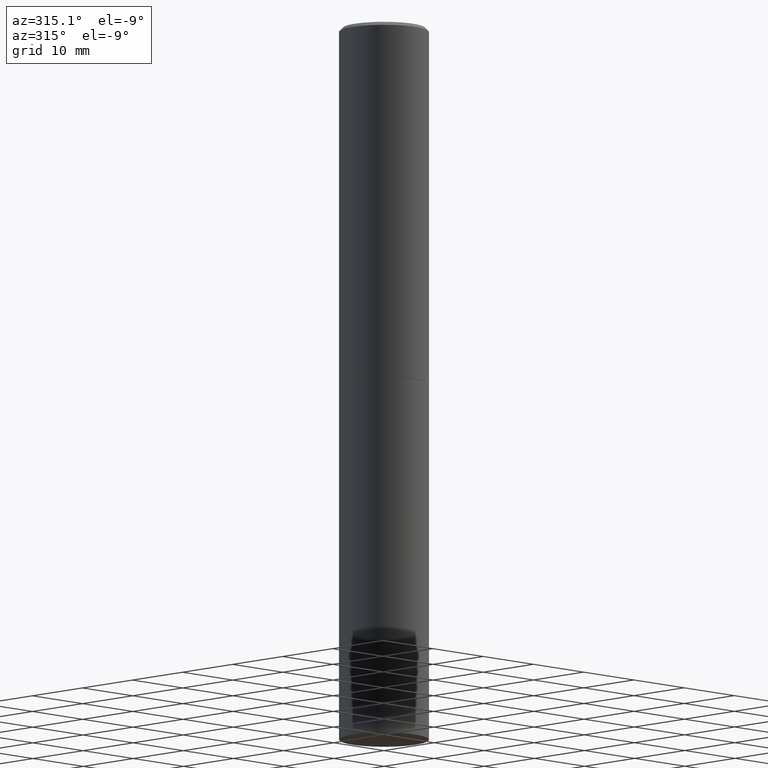
[diagram: clean part render]
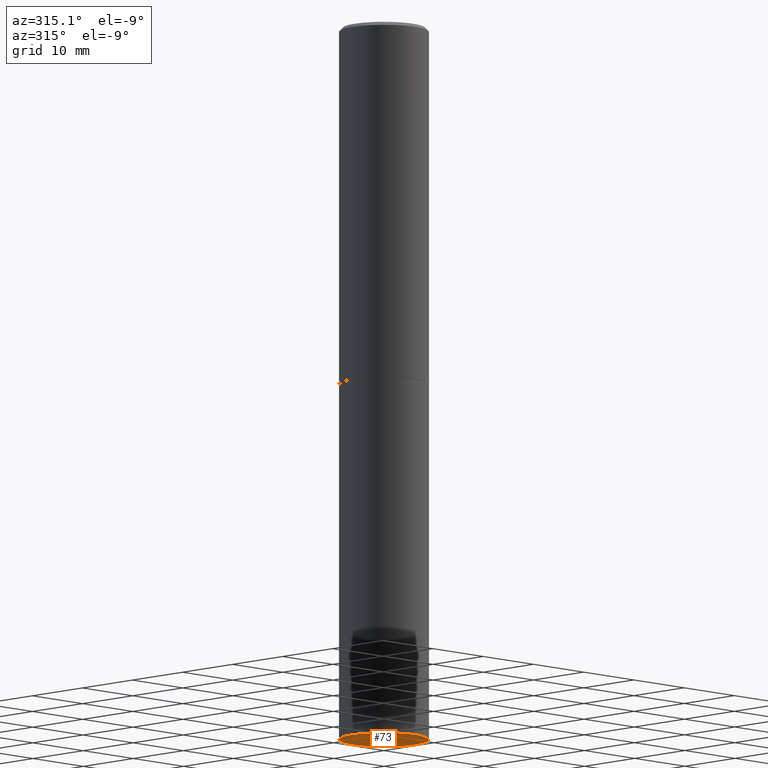
[diagram: same view with one face highlighted and labeled with its STEP entity id]
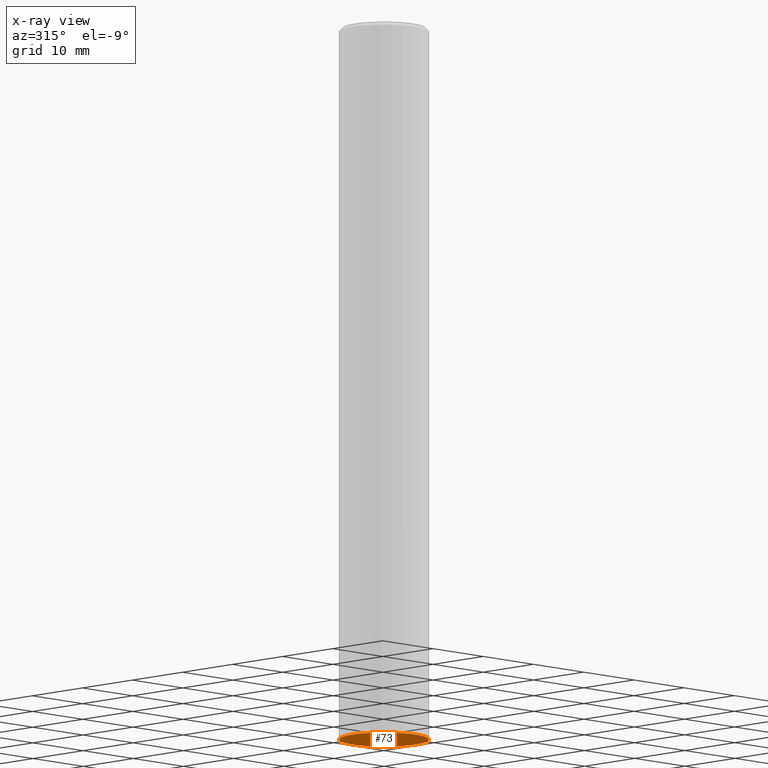
[diagram: x-ray of the same camera — body ghosted, the highlighted face saturated]
A machine part, auxiliary view. The second image highlights one B-rep face of the part: STEP entity #73.
The next image is the same camera in x-ray: the body ghosted, the highlighted face saturated — about 0% of this face is hidden behind the body in this view.
In plain terms, the highlighted planar face has unit normal (0, -0, -1).
Its self-contained STEP definition (entity closure, byte-faithful):
#17 = CARTESIAN_POINT ( 'NONE',  ( 0.2500000000000000000, -1.571166602479415059E-14, -4.000000000000000000 ) ) ;
#23 = EDGE_CURVE ( 'NONE', #257, #217, #50, .T. ) ;
#26 = ORIENTED_EDGE ( 'NONE', *, *, #23, .F. ) ;
#30 = CIRCLE ( 'NONE', #159, 0.2500000000000000000 ) ;
#31 = ORIENTED_EDGE ( 'NONE', *, *, #175, .F. ) ;
#35 = DIRECTION ( 'NONE',  ( 1.000000000000000000, -6.982962677686270655E-15, 0.000000000000000000 ) ) ;
#37 = DIRECTION ( 'NONE',  ( 1.000000000000000000, -6.982962677686270655E-15, 0.000000000000000000 ) ) ;
#43 = DIRECTION ( 'NONE',  ( 2.438088387897960049E-29, -3.491481338843145188E-15, -1.000000000000000000 ) ) ;
#50 = CIRCLE ( 'NONE', #81, 0.2500000000000000000 ) ;
#73 = ADVANCED_FACE ( 'NONE', ( #270 ), #190, .T. ) ;
#81 = AXIS2_PLACEMENT_3D ( 'NONE', #201, #183, #35 ) ;
#126 = CARTESIAN_POINT ( 'NONE',  ( 1.745740669421664299E-15, 0.2499999999999860389, -4.000000000000000888 ) ) ;
#154 = CARTESIAN_POINT ( 'NONE',  ( 9.781875224740546387E-29, -1.396592535537258233E-14, -4.000000000000000000 ) ) ;
#159 = AXIS2_PLACEMENT_3D ( 'NONE', #154, #358, #37 ) ;
#175 = EDGE_CURVE ( 'NONE', #217, #257, #30, .T. ) ;
#183 = DIRECTION ( 'NONE',  ( -2.445468806185136597E-29, 3.491481338843145583E-15, 1.000000000000000000 ) ) ;
#190 = PLANE ( 'NONE',  #202 ) ;
#201 = CARTESIAN_POINT ( 'NONE',  ( 9.781875224740546387E-29, -1.396592535537258233E-14, -4.000000000000000000 ) ) ;
#202 = AXIS2_PLACEMENT_3D ( 'NONE', #126, #43, #300 ) ;
#211 = CARTESIAN_POINT ( 'NONE',  ( -0.2500000000000000000, -8.698087177129185889E-15, -4.000000000000000000 ) ) ;
#217 = VERTEX_POINT ( 'NONE', #211 ) ;
#257 = VERTEX_POINT ( 'NONE', #17 ) ;
#270 = FACE_OUTER_BOUND ( 'NONE', #362, .T. ) ;
#300 = DIRECTION ( 'NONE',  ( -1.000000000000000000, 6.982962677686265922E-15, -4.876176775795935793E-29 ) ) ;
#358 = DIRECTION ( 'NONE',  ( -2.445468806185136597E-29, 3.491481338843145583E-15, 1.000000000000000000 ) ) ;
#362 = EDGE_LOOP ( 'NONE', ( #26, #31 ) ) ;